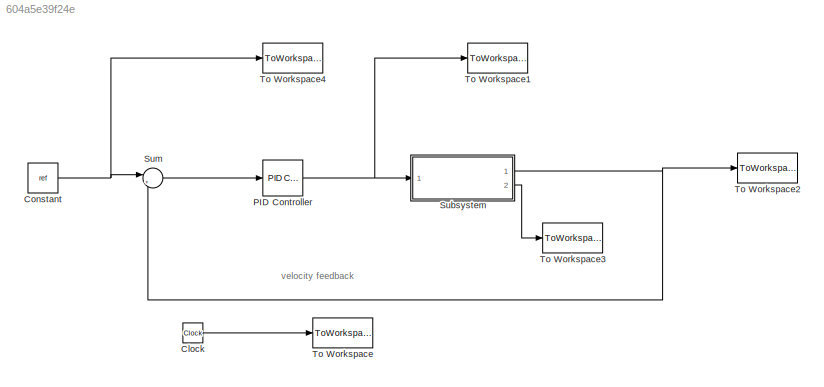
MODEL slx_604a5e39f24e
KIND model
CONFIG AbsTol = auto
CONFIG EnableMultiTasking = on
CONFIG FixedStep = sim_step_size
CONFIG MaxStep = auto
CONFIG MinStep = auto
CONFIG RelTol = 1e-3
CONFIG SampleTimeConstraint = Unconstrained
CONFIG Solver = ode5
CONFIG SolverName = ode5
CONFIG StartTime = 0.0
CONFIG StopTime = sim_stop_time
BLOCK [Clock] Clock
BLOCK [Constant] Constant
  Value = ref
BLOCK [Reference] PID Controller  REF=simulink/Continuous/PID Controller
  Ports = [1, 1]
  SourceBlock = simulink/Continuous/PID Controller
  SourceType = PID 1dof
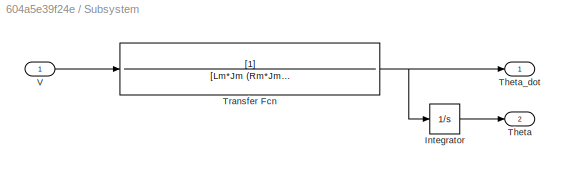
BLOCK [SubSystem] Subsystem
  Ports = [1, 2]
  RequestExecContextInheritance = off
  Variant = off
BLOCK [Integrator] Subsystem/Integrator
  Ports = [1, 1]
BLOCK [Outport] Subsystem/Theta
  IconDisplay = Port number
  Port = 2
BLOCK [Outport] Subsystem/Theta_dot
  IconDisplay = Port number
BLOCK [TransferFcn] Subsystem/Transfer Fcn
  Denominator = [Lm*Jm (Rm*Jm+Bm*Lm) Rm*Bm+Kt*Kb]
BLOCK [Inport] Subsystem/V
  IconDisplay = Port number
BLOCK [Sum] Sum
  IconShape = round
  InputSameDT = off
  Inputs = |+-
  OutDataTypeStr = Inherit: Inherit via internal rule
  Ports = [2, 1]
  SaturateOnIntegerOverflow = off
BLOCK [ToWorkspace] To Workspace
  FixptAsFi = on
  MaxDataPoints = inf
  Ports = [1]
  SampleTime = -1
  Save2DSignal = 3-D array (concatenate along third dimension)
  VariableName = T
BLOCK [ToWorkspace] To Workspace1
  FixptAsFi = on
  MaxDataPoints = inf
  Ports = [1]
  SampleTime = -1
  Save2DSignal = 3-D array (concatenate along third dimension)
  VariableName = Control
BLOCK [ToWorkspace] To Workspace2
  FixptAsFi = on
  MaxDataPoints = inf
  Ports = [1]
  SampleTime = -1
  Save2DSignal = 3-D array (concatenate along third dimension)
  VariableName = Theta_dot
BLOCK [ToWorkspace] To Workspace3
  FixptAsFi = on
  MaxDataPoints = inf
  Ports = [1]
  SampleTime = -1
  Save2DSignal = 3-D array (concatenate along third dimension)
  VariableName = Theta
BLOCK [ToWorkspace] To Workspace4
  FixptAsFi = on
  MaxDataPoints = inf
  Ports = [1]
  SampleTime = -1
  Save2DSignal = 3-D array (concatenate along third dimension)
  VariableName = refsig
ANNOTATION (root): velocity feedback
LINE Clock:1 -> To Workspace:1
NET Constant:1 -> Sum:1, To Workspace4:1
NET PID Controller:1 -> Subsystem:1, To Workspace1:1
LINE Subsystem/Integrator:1 -> Subsystem/Theta:1
NET Subsystem/Transfer Fcn:1 -> Subsystem/Integrator:1, Subsystem/Theta_dot:1
LINE Subsystem/V:1 -> Subsystem/Transfer Fcn:1
NET Subsystem:1 -> Sum:2, To Workspace2:1
LINE Subsystem:2 -> To Workspace3:1
LINE Sum:1 -> PID Controller:1
note: NET lines group one-source signal fan-out (src -> all destinations, sorted); 1:1 wires keep LINE
